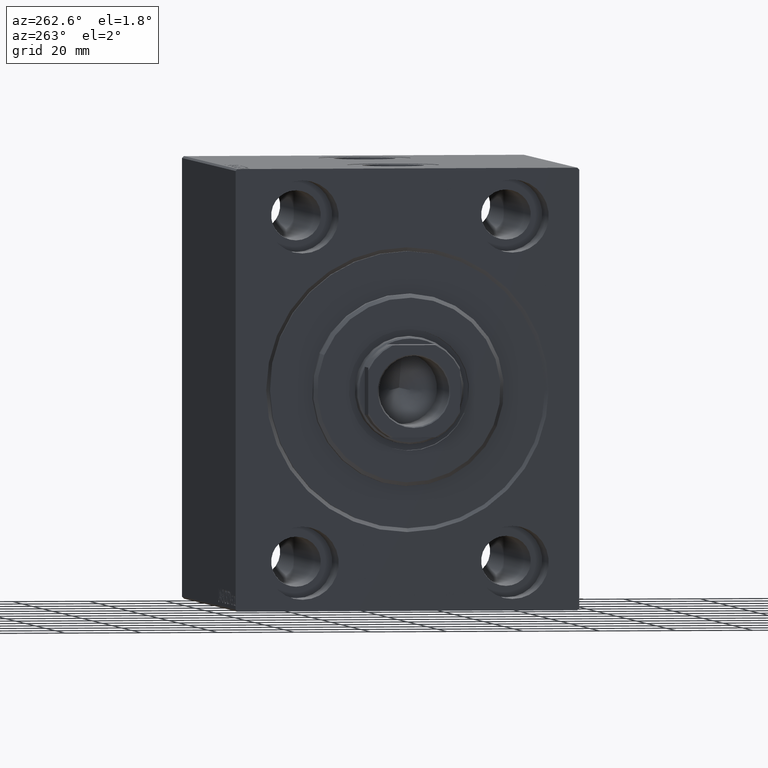
[diagram: clean part render]
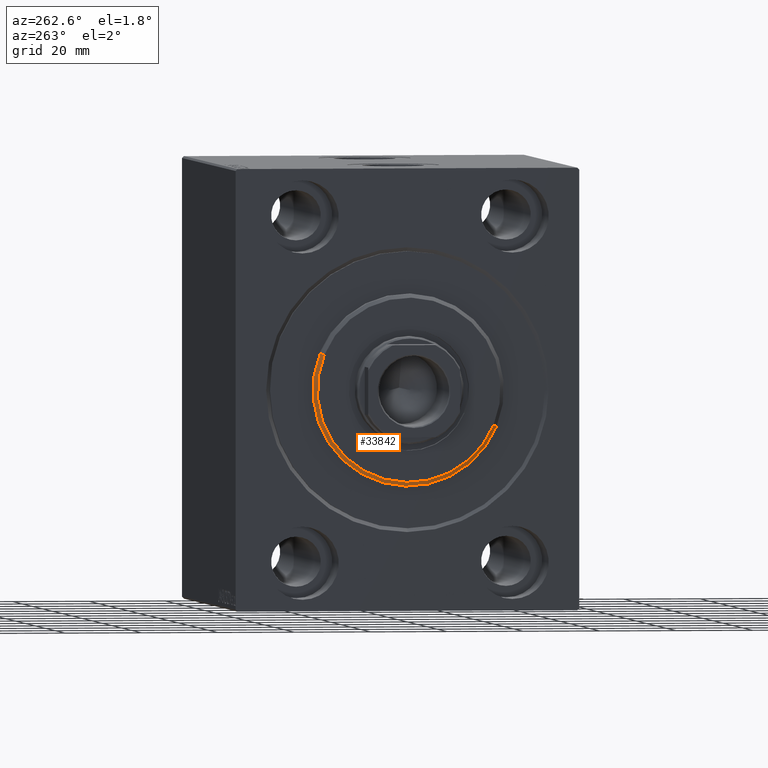
[diagram: same view with one face highlighted and labeled with its STEP entity id]
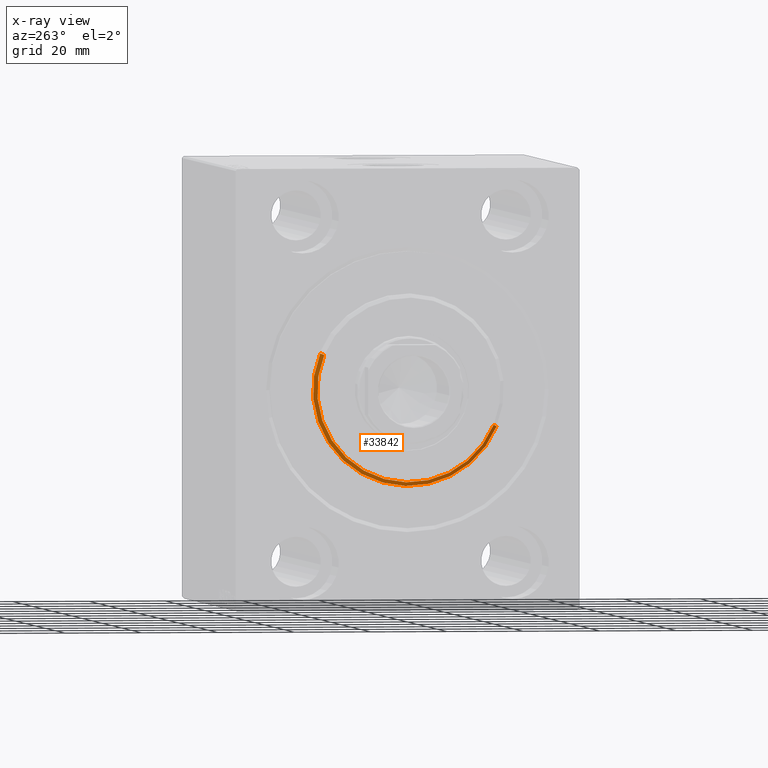
[diagram: x-ray of the same camera — body ghosted, the highlighted face saturated]
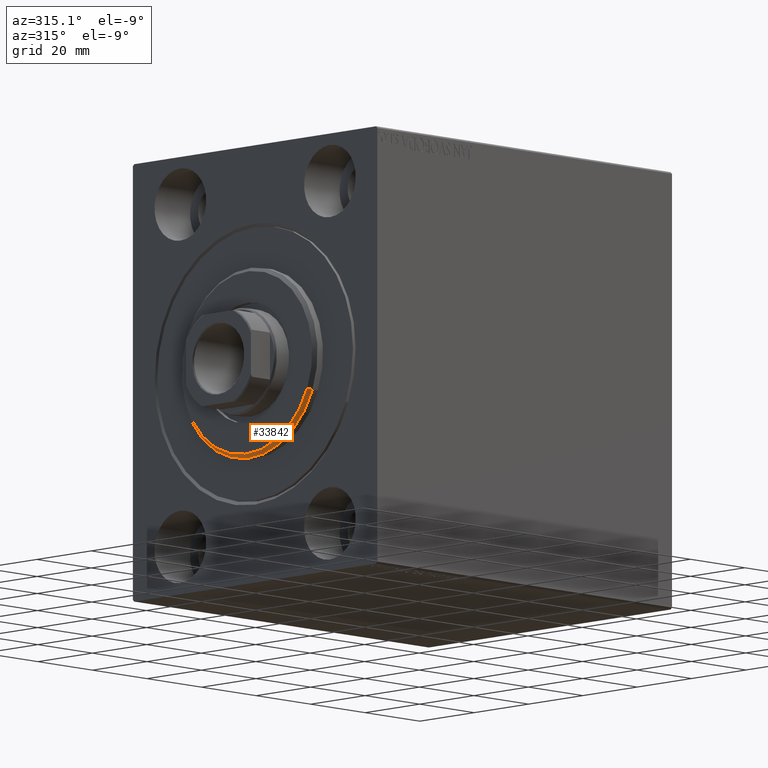
[diagram: same view with one face highlighted and labeled with its STEP entity id]
A machine part, auxiliary view. The second image highlights one B-rep face of the part: STEP entity #33842.
The next image is the same camera in x-ray: the body ghosted, the highlighted face saturated — about 0% of this face is hidden behind the body in this view.
A second angle (auxiliary view) of the same face is appended — the face is thin or edge-on in the first view.
In plain terms, the highlighted conical surface has half-angle 45 deg.
Its self-contained STEP definition (entity closure, byte-faithful):
#451 = CARTESIAN_POINT ( 'NONE',  ( 1.999999999999988676, 0.000000000000000000, 0.000000000000000000 ) ) ;
#606 = LINE ( 'NONE', #17547, #6630 ) ;
#1475 = CARTESIAN_POINT ( 'NONE',  ( 1.999999999999988676, 3.061616997868383043E-15, -25.00000000000000000 ) ) ;
#1953 = DIRECTION ( 'NONE',  ( 0.000000000000000000, 0.000000000000000000, 1.000000000000000000 ) ) ;
#4148 = EDGE_CURVE ( 'NONE', #42968, #7317, #606, .T. ) ;
#4775 = EDGE_CURVE ( 'NONE', #7317, #43916, #5945, .T. ) ;
#5500 = CARTESIAN_POINT ( 'NONE',  ( 1.999999999999988676, 0.000000000000000000, 25.00000000000000000 ) ) ;
#5945 = CIRCLE ( 'NONE', #26578, 25.00000000000000000 ) ;
#6630 = VECTOR ( 'NONE', #41382, 1000.000000000000000 ) ;
#7317 = VERTEX_POINT ( 'NONE', #5500 ) ;
#10859 = CONICAL_SURFACE ( 'NONE', #37918, 24.00000000000000711, 0.7853981633974396193 ) ;
#12113 = ORIENTED_EDGE ( 'NONE', *, *, #4775, .F. ) ;
#12605 = EDGE_LOOP ( 'NONE', ( #30291, #23706, #12113, #12969 ) ) ;
#12969 = ORIENTED_EDGE ( 'NONE', *, *, #4148, .F. ) ;
#13296 = LINE ( 'NONE', #17521, #28822 ) ;
#13818 = EDGE_CURVE ( 'NONE', #29569, #43916, #13296, .T. ) ;
#14795 = DIRECTION ( 'NONE',  ( 0.000000000000000000, 0.000000000000000000, -1.000000000000000000 ) ) ;
#15546 = DIRECTION ( 'NONE',  ( -1.000000000000000000, 0.000000000000000000, 0.000000000000000000 ) ) ;
#17383 = DIRECTION ( 'NONE',  ( -1.000000000000000000, 0.000000000000000000, 0.000000000000000000 ) ) ;
#17521 = CARTESIAN_POINT ( 'NONE',  ( 3.000000000000000000, 2.939152317953648683E-15, -24.00000000000000711 ) ) ;
#17547 = CARTESIAN_POINT ( 'NONE',  ( 3.000000000000000000, 0.000000000000000000, 24.00000000000000711 ) ) ;
#20576 = AXIS2_PLACEMENT_3D ( 'NONE', #41531, #24597, #14795 ) ;
#23706 = ORIENTED_EDGE ( 'NONE', *, *, #13818, .T. ) ;
#24597 = DIRECTION ( 'NONE',  ( 1.000000000000000000, -0.000000000000000000, 0.000000000000000000 ) ) ;
#25659 = EDGE_CURVE ( 'NONE', #29569, #42968, #39788, .T. ) ;
#26578 = AXIS2_PLACEMENT_3D ( 'NONE', #451, #17383, #37888 ) ;
#28822 = VECTOR ( 'NONE', #37135, 1000.000000000000000 ) ;
#29569 = VERTEX_POINT ( 'NONE', #32253 ) ;
#30291 = ORIENTED_EDGE ( 'NONE', *, *, #25659, .F. ) ;
#32253 = CARTESIAN_POINT ( 'NONE',  ( 3.000000000000000000, 3.000384657911015469E-15, -24.00000000000000711 ) ) ;
#33842 = ADVANCED_FACE ( 'NONE', ( #38297 ), #10859, .T. ) ;
#37135 = DIRECTION ( 'NONE',  ( -0.7071067811865536790, 8.659560562354858902E-17, -0.7071067811865414665 ) ) ;
#37888 = DIRECTION ( 'NONE',  ( 0.000000000000000000, 0.000000000000000000, -1.000000000000000000 ) ) ;
#37918 = AXIS2_PLACEMENT_3D ( 'NONE', #41864, #15546, #1953 ) ;
#38297 = FACE_OUTER_BOUND ( 'NONE', #12605, .T. ) ;
#39788 = CIRCLE ( 'NONE', #20576, 24.00000000000000711 ) ;
#41382 = DIRECTION ( 'NONE',  ( -0.7071067811865536790, 0.000000000000000000, 0.7071067811865414665 ) ) ;
#41531 = CARTESIAN_POINT ( 'NONE',  ( 3.000000000000000000, 0.000000000000000000, 0.000000000000000000 ) ) ;
#41864 = CARTESIAN_POINT ( 'NONE',  ( 3.000000000000000000, 0.000000000000000000, 0.000000000000000000 ) ) ;
#42968 = VERTEX_POINT ( 'NONE', #44006 ) ;
#43916 = VERTEX_POINT ( 'NONE', #1475 ) ;
#44006 = CARTESIAN_POINT ( 'NONE',  ( 3.000000000000000000, 0.000000000000000000, 24.00000000000000711 ) ) ;